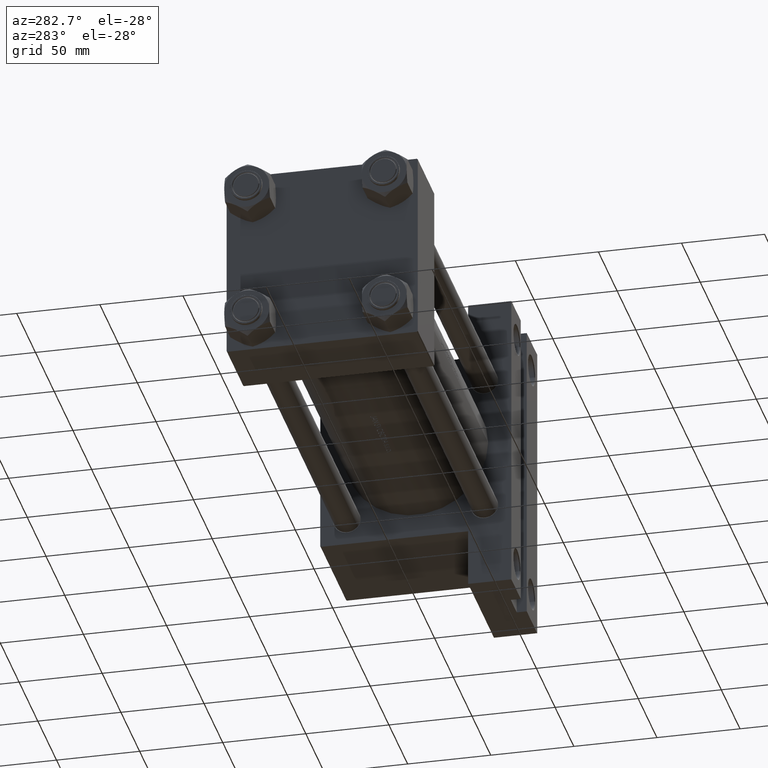
[diagram: clean part render]
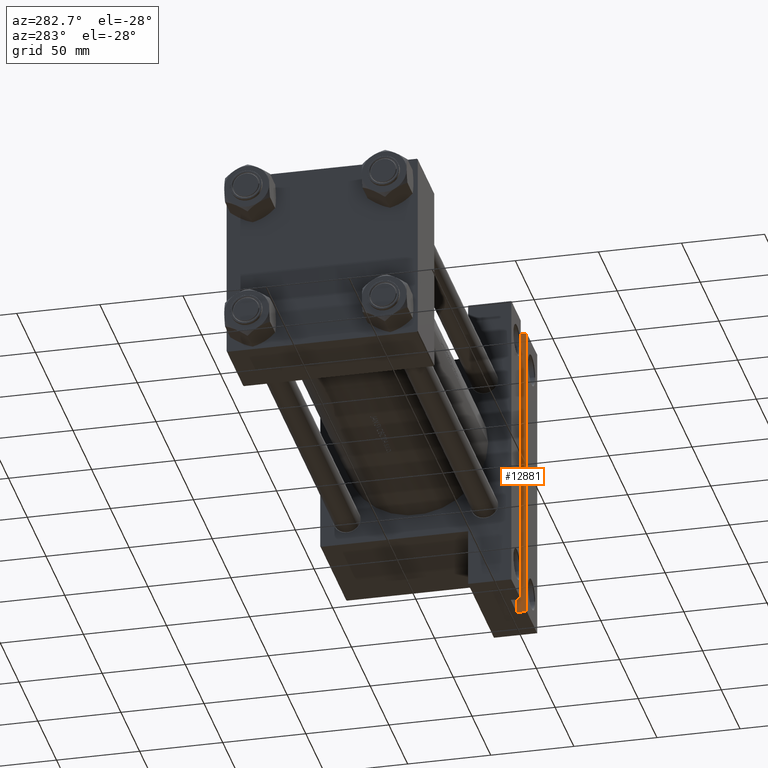
[diagram: same view with one face highlighted and labeled with its STEP entity id]
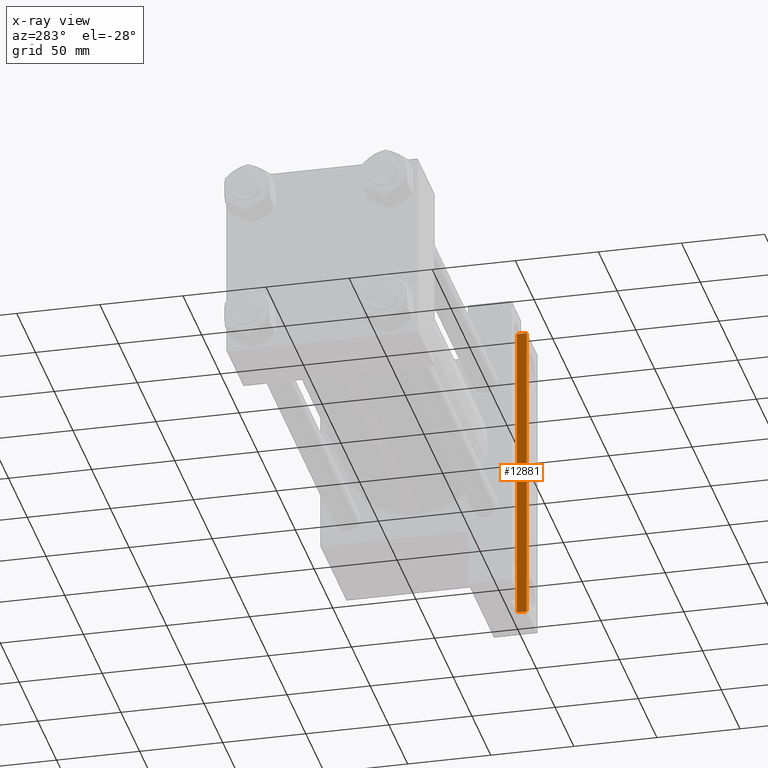
[diagram: x-ray of the same camera — body ghosted, the highlighted face saturated]
A machine part, auxiliary view. The second image highlights one B-rep face of the part: STEP entity #12881.
The next image is the same camera in x-ray: the body ghosted, the highlighted face saturated — about 0% of this face is hidden behind the body in this view.
In plain terms, the highlighted planar face has unit normal (1, 0, 0).
Its self-contained STEP definition (entity closure, byte-faithful):
#1709 = EDGE_CURVE ( 'NONE', #2372, #31703, #2619, .T. ) ;
#2372 = VERTEX_POINT ( 'NONE', #28955 ) ;
#2619 = LINE ( 'NONE', #35963, #46643 ) ;
#2663 = DIRECTION ( 'NONE',  ( 1.000000000000000000, 0.000000000000000000, 0.000000000000000000 ) ) ;
#7253 = AXIS2_PLACEMENT_3D ( 'NONE', #46953, #2663, #32586 ) ;
#8761 = ORIENTED_EDGE ( 'NONE', *, *, #12544, .F. ) ;
#8909 = DIRECTION ( 'NONE',  ( -0.000000000000000000, -0.000000000000000000, -1.000000000000000000 ) ) ;
#9394 = CARTESIAN_POINT ( 'NONE',  ( 291.0000000000000568, 92.49999999999997158, -57.49999999999997158 ) ) ;
#10412 = DIRECTION ( 'NONE',  ( -0.000000000000000000, -1.000000000000000000, -0.000000000000000000 ) ) ;
#12214 = DIRECTION ( 'NONE',  ( -0.000000000000000000, -1.000000000000000000, -0.000000000000000000 ) ) ;
#12544 = EDGE_CURVE ( 'NONE', #31703, #45327, #47722, .T. ) ;
#12881 = ADVANCED_FACE ( 'NONE', ( #36003 ), #47185, .F. ) ;
#14170 = LINE ( 'NONE', #28995, #28217 ) ;
#15367 = EDGE_CURVE ( 'NONE', #2372, #23909, #14170, .T. ) ;
#16599 = VECTOR ( 'NONE', #28983, 1000.000000000000000 ) ;
#18035 = CARTESIAN_POINT ( 'NONE',  ( 291.0000000000000568, -92.50000000000000000, -51.49999999999997868 ) ) ;
#18633 = ORIENTED_EDGE ( 'NONE', *, *, #15367, .T. ) ;
#23909 = VERTEX_POINT ( 'NONE', #9394 ) ;
#27222 = CARTESIAN_POINT ( 'NONE',  ( 291.0000000000000568, -92.50000000000000000, -57.49999999999997158 ) ) ;
#27234 = VECTOR ( 'NONE', #12214, 1000.000000000000000 ) ;
#28217 = VECTOR ( 'NONE', #8909, 1000.000000000000000 ) ;
#28955 = CARTESIAN_POINT ( 'NONE',  ( 291.0000000000000568, 92.49999999999997158, -51.49999999999997868 ) ) ;
#28983 = DIRECTION ( 'NONE',  ( -0.000000000000000000, -0.000000000000000000, -1.000000000000000000 ) ) ;
#28995 = CARTESIAN_POINT ( 'NONE',  ( 291.0000000000000568, 92.49999999999997158, -51.49999999999997868 ) ) ;
#29596 = EDGE_CURVE ( 'NONE', #23909, #45327, #45046, .T. ) ;
#30445 = CARTESIAN_POINT ( 'NONE',  ( 291.0000000000000568, -92.50000000000000000, -57.49999999999997158 ) ) ;
#31703 = VERTEX_POINT ( 'NONE', #43705 ) ;
#32586 = DIRECTION ( 'NONE',  ( 0.000000000000000000, 0.000000000000000000, -1.000000000000000000 ) ) ;
#34932 = ORIENTED_EDGE ( 'NONE', *, *, #29596, .T. ) ;
#35425 = ORIENTED_EDGE ( 'NONE', *, *, #1709, .F. ) ;
#35963 = CARTESIAN_POINT ( 'NONE',  ( 291.0000000000000568, -92.50000000000000000, -51.49999999999997868 ) ) ;
#36003 = FACE_OUTER_BOUND ( 'NONE', #40586, .T. ) ;
#40586 = EDGE_LOOP ( 'NONE', ( #34932, #8761, #35425, #18633 ) ) ;
#43705 = CARTESIAN_POINT ( 'NONE',  ( 291.0000000000000568, -92.50000000000004263, -51.49999999999997868 ) ) ;
#45046 = LINE ( 'NONE', #30445, #27234 ) ;
#45327 = VERTEX_POINT ( 'NONE', #27222 ) ;
#46643 = VECTOR ( 'NONE', #10412, 1000.000000000000000 ) ;
#46953 = CARTESIAN_POINT ( 'NONE',  ( 291.0000000000000568, -92.50000000000000000, -51.49999999999997868 ) ) ;
#47185 = PLANE ( 'NONE',  #7253 ) ;
#47722 = LINE ( 'NONE', #18035, #16599 ) ;